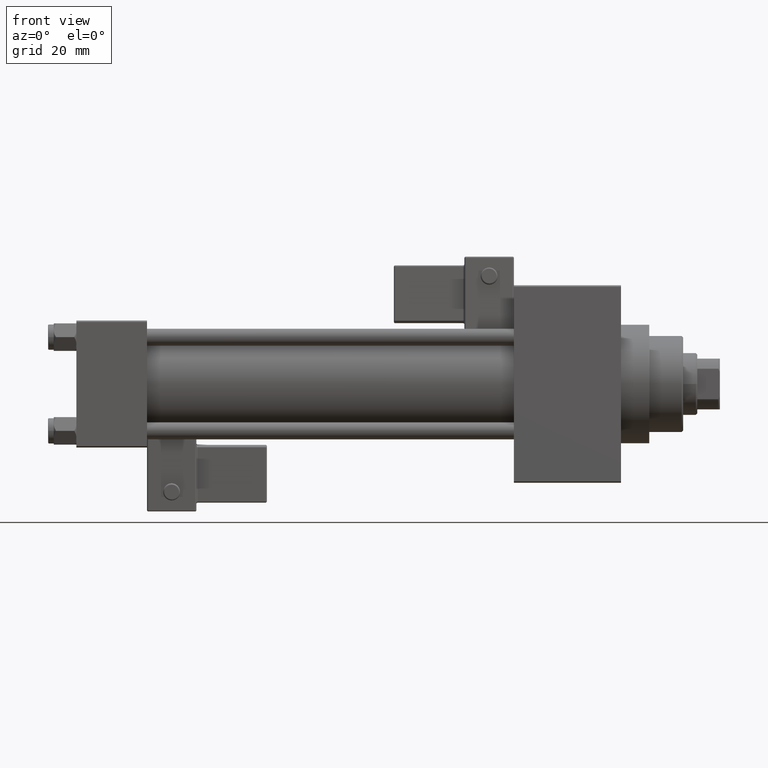
[diagram: clean part render]
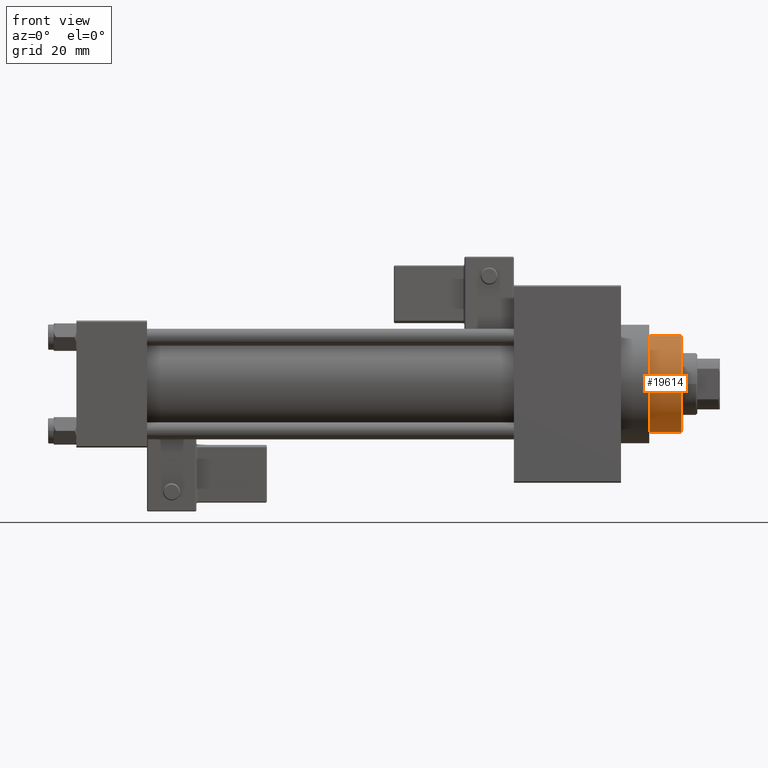
[diagram: same view with one face highlighted and labeled with its STEP entity id]
A machine part, front view. The second image highlights one B-rep face of the part: STEP entity #19614.
In plain terms, the highlighted cylindrical surface (partial cylindrical patch) has radius 17 mm, axis along (-1, 0, 0).
Its self-contained STEP definition (entity closure, byte-faithful):
#1898 = ORIENTED_EDGE ( 'NONE', *, *, #9572, .T. ) ;
#2251 = LINE ( 'NONE', #14006, #45991 ) ;
#2602 = EDGE_CURVE ( 'NONE', #4498, #27607, #2251, .T. ) ;
#4498 = VERTEX_POINT ( 'NONE', #21389 ) ;
#4994 = DIRECTION ( 'NONE',  ( 1.000000000000000000, 0.000000000000000000, 0.000000000000000000 ) ) ;
#5514 = DIRECTION ( 'NONE',  ( -0.000000000000000000, -0.000000000000000000, -1.000000000000000000 ) ) ;
#7254 = EDGE_CURVE ( 'NONE', #33548, #19255, #16832, .T. ) ;
#9572 = EDGE_CURVE ( 'NONE', #19255, #27607, #41469, .T. ) ;
#9827 = FACE_OUTER_BOUND ( 'NONE', #25094, .T. ) ;
#11055 = VECTOR ( 'NONE', #39342, 1000.000000000000000 ) ;
#13597 = CARTESIAN_POINT ( 'NONE',  ( 0.000000000000000000, 0.000000000000000000, 54.76000000000001222 ) ) ;
#14006 = CARTESIAN_POINT ( 'NONE',  ( -17.00000000000000000, 0.000000000000000000, 55.26000000000000512 ) ) ;
#16832 = LINE ( 'NONE', #43099, #11055 ) ;
#19255 = VERTEX_POINT ( 'NONE', #44386 ) ;
#19614 = ADVANCED_FACE ( 'NONE', ( #9827 ), #44082, .T. ) ;
#19891 = AXIS2_PLACEMENT_3D ( 'NONE', #24730, #36234, #4994 ) ;
#20798 = CARTESIAN_POINT ( 'NONE',  ( 0.000000000000000000, 0.000000000000000000, 55.26000000000000512 ) ) ;
#21389 = CARTESIAN_POINT ( 'NONE',  ( -17.00000000000000000, 0.000000000000000000, 54.76000000000001222 ) ) ;
#24086 = DIRECTION ( 'NONE',  ( 1.000000000000000000, 0.000000000000000000, 0.000000000000000000 ) ) ;
#24730 = CARTESIAN_POINT ( 'NONE',  ( 0.000000000000000000, 0.000000000000000000, 43.25999999999999801 ) ) ;
#25094 = EDGE_LOOP ( 'NONE', ( #33927, #27801, #1898, #29833 ) ) ;
#27607 = VERTEX_POINT ( 'NONE', #47955 ) ;
#27663 = AXIS2_PLACEMENT_3D ( 'NONE', #13597, #35835, #24086 ) ;
#27801 = ORIENTED_EDGE ( 'NONE', *, *, #7254, .T. ) ;
#28296 = DIRECTION ( 'NONE',  ( -0.000000000000000000, -0.000000000000000000, -1.000000000000000000 ) ) ;
#28925 = AXIS2_PLACEMENT_3D ( 'NONE', #20798, #28296, #46820 ) ;
#29833 = ORIENTED_EDGE ( 'NONE', *, *, #2602, .F. ) ;
#31399 = CARTESIAN_POINT ( 'NONE',  ( 17.00000000000000000, 2.081899558550500280E-15, 54.76000000000001222 ) ) ;
#33548 = VERTEX_POINT ( 'NONE', #31399 ) ;
#33927 = ORIENTED_EDGE ( 'NONE', *, *, #46281, .T. ) ;
#35835 = DIRECTION ( 'NONE',  ( 0.000000000000000000, 0.000000000000000000, -1.000000000000000000 ) ) ;
#36234 = DIRECTION ( 'NONE',  ( 0.000000000000000000, 0.000000000000000000, 1.000000000000000000 ) ) ;
#39342 = DIRECTION ( 'NONE',  ( -0.000000000000000000, -0.000000000000000000, -1.000000000000000000 ) ) ;
#41469 = CIRCLE ( 'NONE', #19891, 17.00000000000000000 ) ;
#43099 = CARTESIAN_POINT ( 'NONE',  ( 17.00000000000000000, 2.081899558550500280E-15, 55.26000000000000512 ) ) ;
#44082 = CYLINDRICAL_SURFACE ( 'NONE', #28925, 17.00000000000000000 ) ;
#44386 = CARTESIAN_POINT ( 'NONE',  ( 17.00000000000000000, 2.081899558550500280E-15, 43.25999999999999801 ) ) ;
#45991 = VECTOR ( 'NONE', #5514, 1000.000000000000000 ) ;
#46281 = EDGE_CURVE ( 'NONE', #4498, #33548, #49250, .T. ) ;
#46820 = DIRECTION ( 'NONE',  ( -1.000000000000000000, 0.000000000000000000, 0.000000000000000000 ) ) ;
#47955 = CARTESIAN_POINT ( 'NONE',  ( -17.00000000000000000, 0.000000000000000000, 43.25999999999999801 ) ) ;
#49250 = CIRCLE ( 'NONE', #27663, 17.00000000000000000 ) ;